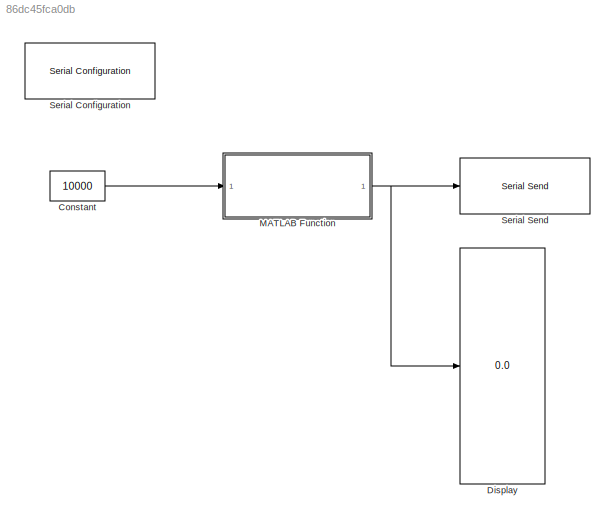
MODEL slx_86dc45fca0db
KIND model
CONFIG AbsTol = auto
CONFIG EnableMultiTasking = off
CONFIG FixedStep = 1
CONFIG MaxStep = auto
CONFIG MinStep = auto
CONFIG RelTol = 1e-3
CONFIG SampleTimeConstraint = Unconstrained
CONFIG Solver = ode4
CONFIG SolverName = ode4
CONFIG StartTime = 0.0
CONFIG StopTime = 10.0
BLOCK [Constant] Constant
  OutDataTypeStr = uint16
  SampleTime = 1
  Value = 10000
BLOCK [Display] Display
  Decimation = 1
  Format = hex (Stored Integer)
  Ports = [1]
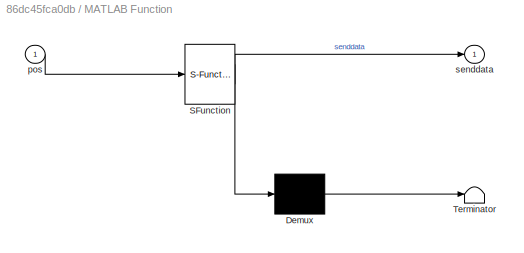
BLOCK [SubSystem] MATLAB Function
  ErrorFcn = Stateflow.Translate.translate
  PermitHierarchicalResolution = ExplicitOnly
  Ports = [1, 1]
  RequestExecContextInheritance = off
  SFBlockType = MATLAB Function
  TreatAsAtomicUnit = on
BLOCK [Demux] MATLAB Function/ Demux 
  Outputs = 1
  Ports = [1, 1]
BLOCK [S-Function] MATLAB Function/ SFunction 
  EnableBusSupport = on
  FunctionName = sf_sfun
  PortCounts = [1 2]
  Ports = [1, 2]
  SFcnIsStateOwnerBlock = off
  SFunctionDeploymentMode = off
  Tag = Stateflow S-Function basic_serial_send 2
BLOCK [Terminator] MATLAB Function/ Terminator 
BLOCK [Inport] MATLAB Function/pos
  IconDisplay = Port number
BLOCK [Outport] MATLAB Function/senddata
  IconDisplay = Port number
BLOCK [Reference] Serial Configuration  REF=instrumentlib/Serial Configuration
  Ports = []
  Priority = -200000
  SourceBlock = instrumentlib/Serial Configuration
  SourceProductBaseCode = IC
  SourceProductName = Instrument Control Toolbox
  SourceType = Serial Configuration
BLOCK [Reference] Serial Send  REF=instrumentlib/Serial Send
  Ports = [1]
  SourceBlock = instrumentlib/Serial Send
  SourceProductBaseCode = IC
  SourceProductName = Instrument Control Toolbox
  SourceType = Serial Send
LINE Constant:1 -> MATLAB Function:1
NET MATLAB Function:1 -> Display:1, Serial Send:1
note: NET lines group one-source signal fan-out (src -> all destinations, sorted); 1:1 wires keep LINE
CHART MATLAB Function states=1 transitions=1
  STATE_LABEL 'eML_blk_kernel()'
  STATE_LABEL "SCRIPT:\n% script_sendTargetPosition\n% MATLAB EPOS LibraryのsendTargetPosition()から書き換え\n\n% function [] = sendTargetPosition( obj, pos )\n\nfunction senddata = func_sendTargetPosition(pos)\n% pos = 20480;\n\n%Sets the TargetPosition for Profile Position mode\n%pos must be an integer.\npos_hex = '';\n\nif pos >= 0\n    pos_hex = dec2hex(pos, 8);\nelse\n    pos_hex = dec2hex(2^32+pos, 8);\nend\n\n%% Build write object...<+1836ch>"
